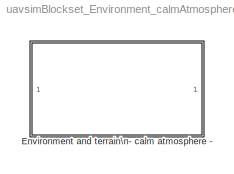
MODEL uavsimBlockset_Environment_calmAtmosphere
KIND library
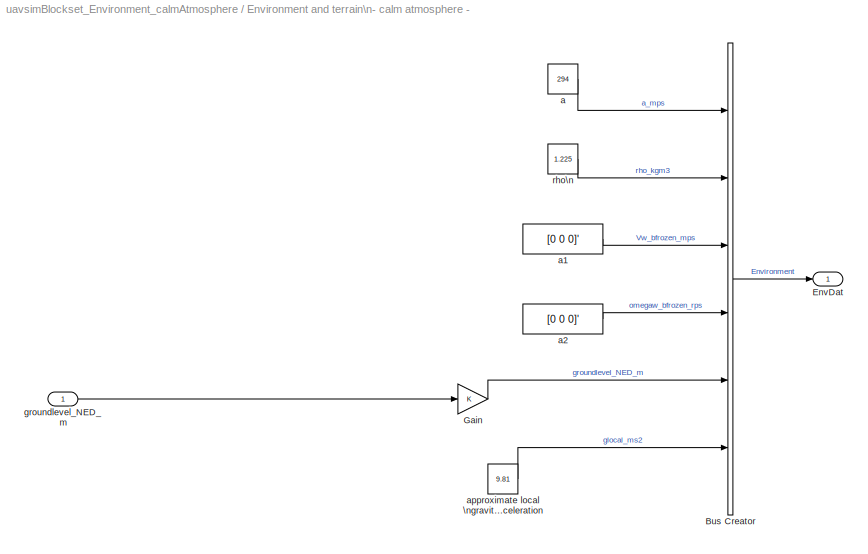
BLOCK [SubSystem] Environment and terrain\n- calm atmosphere -
  Ports = [1, 1]
  RequestExecContextInheritance = off
  SID = 1695
  Variant = off
BLOCK [BusCreator] Environment and terrain\n- calm atmosphere -/Bus Creator
  DisplayOption = bar
  InheritFromInputs = on
  Inputs = 6
  NonVirtualBus = on
  OutDataTypeStr = Bus: Environment
  Ports = [6, 1]
  SID = 1771
BLOCK [Outport] Environment and terrain\n- calm atmosphere -/EnvDat
  IconDisplay = Port number
  OutDataTypeStr = Bus: Environment
  SID = 1793
BLOCK [Gain] Environment and terrain\n- calm atmosphere -/Gain
  OutDataTypeStr = Inherit: Inherit via internal rule
  ParamDataTypeStr = Inherit: Inherit via internal rule
  SID = 4461
  SaturateOnIntegerOverflow = off
BLOCK [Constant] Environment and terrain\n- calm atmosphere -/a
  SID = 1785
  Value = 294
BLOCK [Constant] Environment and terrain\n- calm atmosphere -/a1
  SID = 4449
  Value = [0 0 0]'
BLOCK [Constant] Environment and terrain\n- calm atmosphere -/a2
  SID = 4450
  Value = [0 0 0]'
BLOCK [Constant] Environment and terrain\n- calm atmosphere -/approximate local \ngravitational acceleration
  SID = 4462
  Value = 9.81
BLOCK [Inport] Environment and terrain\n- calm atmosphere -/groundlevel_NED_m
  IconDisplay = Port number
  SID = 4018
BLOCK [Constant] Environment and terrain\n- calm atmosphere -/rho\n
  SID = 1789
  Value = 1.225
LINE Environment and terrain\n- calm atmosphere -/Bus Creator:1 -> Environment and terrain\n- calm atmosphere -/EnvDat:1
LINE Environment and terrain\n- calm atmosphere -/Gain:1 -> Environment and terrain\n- calm atmosphere -/Bus Creator:5
LINE Environment and terrain\n- calm atmosphere -/a1:1 -> Environment and terrain\n- calm atmosphere -/Bus Creator:3
LINE Environment and terrain\n- calm atmosphere -/a2:1 -> Environment and terrain\n- calm atmosphere -/Bus Creator:4
LINE Environment and terrain\n- calm atmosphere -/a:1 -> Environment and terrain\n- calm atmosphere -/Bus Creator:1
LINE Environment and terrain\n- calm atmosphere -/approximate local \ngravitational acceleration:1 -> Environment and terrain\n- calm atmosphere -/Bus Creator:6
LINE Environment and terrain\n- calm atmosphere -/groundlevel_NED_m:1 -> Environment and terrain\n- calm atmosphere -/Gain:1
LINE Environment and terrain\n- calm atmosphere -/rho\n:1 -> Environment and terrain\n- calm atmosphere -/Bus Creator:2
